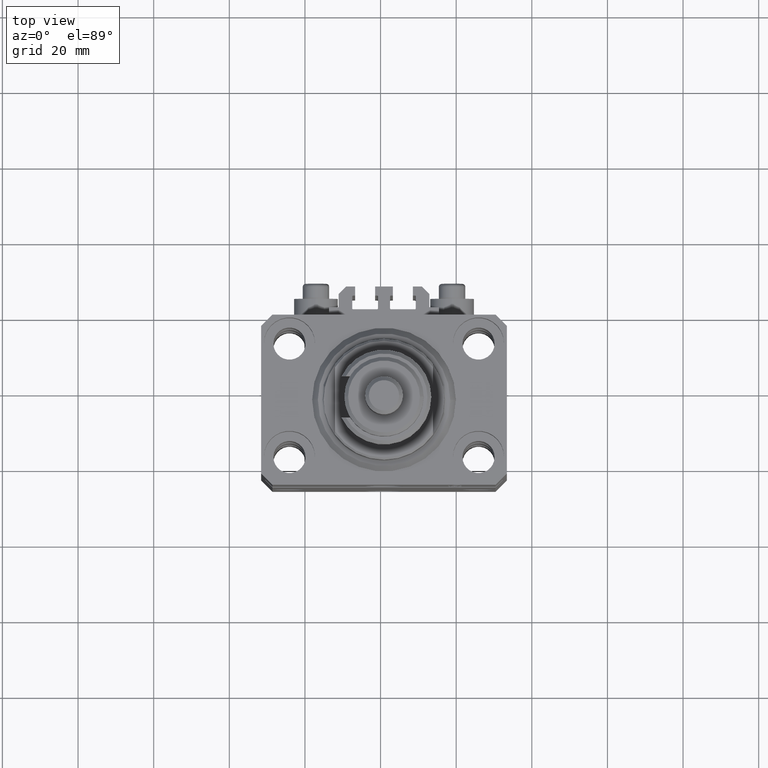
[diagram: clean part render]
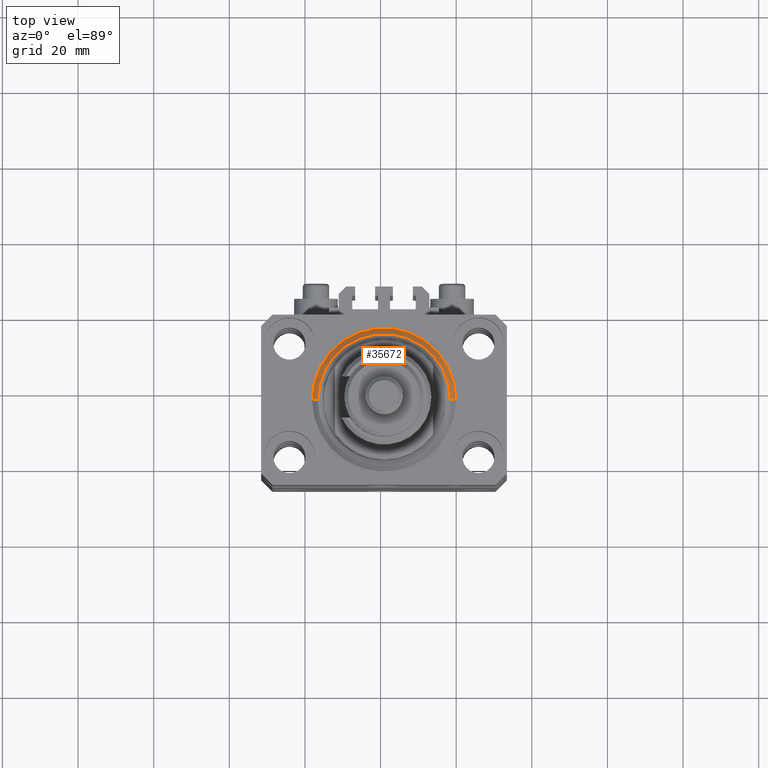
[diagram: same view with one face highlighted and labeled with its STEP entity id]
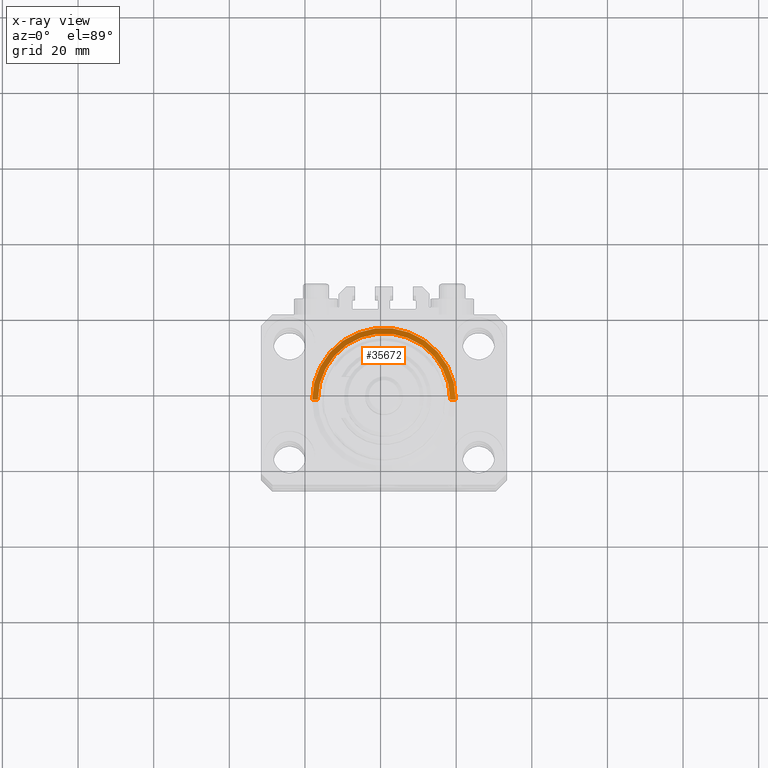
[diagram: x-ray of the same camera — body ghosted, the highlighted face saturated]
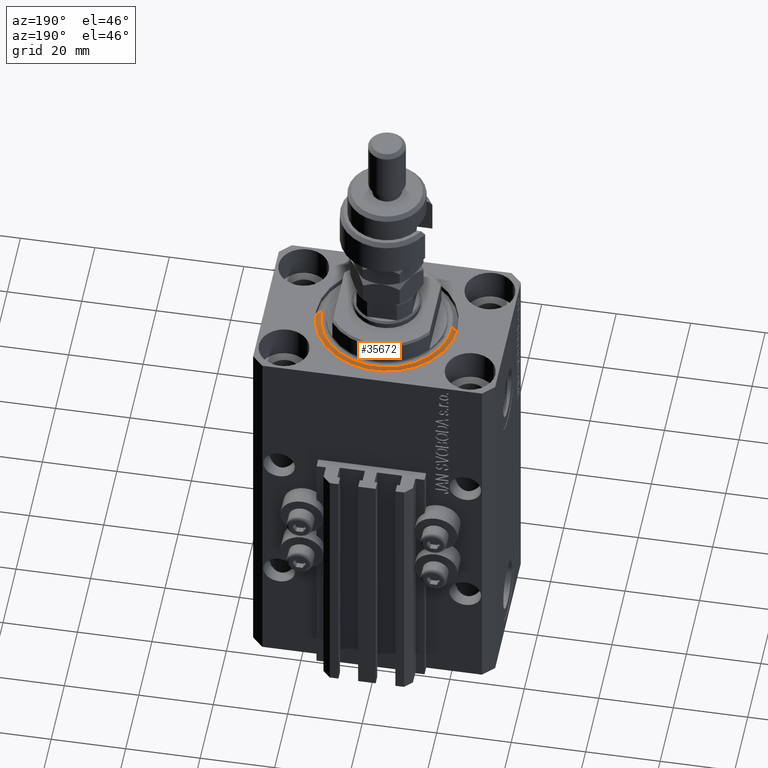
[diagram: same view with one face highlighted and labeled with its STEP entity id]
A machine part, top view. The second image highlights one B-rep face of the part: STEP entity #35672.
The next image is the same camera in x-ray: the body ghosted, the highlighted face saturated — about 0% of this face is hidden behind the body in this view.
A second angle (auxiliary view) of the same face is appended — the face is thin or edge-on in the first view.
In plain terms, the highlighted conical surface has half-angle 45 deg.
Its self-contained STEP definition (entity closure, byte-faithful):
#321 = DIRECTION ( 'NONE',  ( 0.7071067811865483499, 0.000000000000000000, 0.7071067811865467956 ) ) ;
#3217 = AXIS2_PLACEMENT_3D ( 'NONE', #46024, #38532, #27178 ) ;
#3499 = CARTESIAN_POINT ( 'NONE',  ( -17.49999999999999289, 2.234980408443919215E-15, 0.000000000000000000 ) ) ;
#4195 = LINE ( 'NONE', #42897, #15130 ) ;
#4554 = CARTESIAN_POINT ( 'NONE',  ( 17.49999999999999289, 0.000000000000000000, 0.000000000000000000 ) ) ;
#4700 = VERTEX_POINT ( 'NONE', #18122 ) ;
#6300 = VERTEX_POINT ( 'NONE', #3499 ) ;
#8472 = ORIENTED_EDGE ( 'NONE', *, *, #42648, .F. ) ;
#9015 = LINE ( 'NONE', #21131, #15438 ) ;
#9558 = DIRECTION ( 'NONE',  ( 1.000000000000000000, 0.000000000000000000, 0.000000000000000000 ) ) ;
#10967 = AXIS2_PLACEMENT_3D ( 'NONE', #37662, #45937, #9558 ) ;
#14463 = ORIENTED_EDGE ( 'NONE', *, *, #25511, .F. ) ;
#15130 = VECTOR ( 'NONE', #321, 1000.000000000000000 ) ;
#15438 = VECTOR ( 'NONE', #44126, 1000.000000000000000 ) ;
#16740 = CIRCLE ( 'NONE', #10967, 19.00000000000000000 ) ;
#17520 = VERTEX_POINT ( 'NONE', #17691 ) ;
#17691 = CARTESIAN_POINT ( 'NONE',  ( -19.00000000000000000, 0.000000000000000000, 1.500000000000004885 ) ) ;
#18122 = CARTESIAN_POINT ( 'NONE',  ( 19.00000000000000000, 2.326828918379970970E-15, 1.500000000000004885 ) ) ;
#21131 = CARTESIAN_POINT ( 'NONE',  ( -19.00000000000000000, 2.326828918379970970E-15, 1.500000000000004885 ) ) ;
#21509 = CIRCLE ( 'NONE', #38843, 17.49999999999999289 ) ;
#22617 = DIRECTION ( 'NONE',  ( 1.000000000000000000, 0.000000000000000000, 0.000000000000000000 ) ) ;
#23002 = CONICAL_SURFACE ( 'NONE', #3217, 19.00000000000000000, 0.7853981633974492782 ) ;
#24310 = EDGE_CURVE ( 'NONE', #4700, #17520, #16740, .T. ) ;
#25511 = EDGE_CURVE ( 'NONE', #49181, #4700, #4195, .T. ) ;
#27178 = DIRECTION ( 'NONE',  ( 1.000000000000000000, 0.000000000000000000, 0.000000000000000000 ) ) ;
#29830 = ORIENTED_EDGE ( 'NONE', *, *, #30916, .T. ) ;
#30607 = DIRECTION ( 'NONE',  ( -0.000000000000000000, -0.000000000000000000, -1.000000000000000000 ) ) ;
#30916 = EDGE_CURVE ( 'NONE', #6300, #17520, #9015, .T. ) ;
#32464 = EDGE_LOOP ( 'NONE', ( #8472, #29830, #45394, #14463 ) ) ;
#35672 = ADVANCED_FACE ( 'NONE', ( #42401 ), #23002, .T. ) ;
#37662 = CARTESIAN_POINT ( 'NONE',  ( 0.000000000000000000, 0.000000000000000000, 1.500000000000004885 ) ) ;
#38532 = DIRECTION ( 'NONE',  ( -0.000000000000000000, -0.000000000000000000, 1.000000000000000000 ) ) ;
#38843 = AXIS2_PLACEMENT_3D ( 'NONE', #45581, #30607, #22617 ) ;
#42401 = FACE_OUTER_BOUND ( 'NONE', #32464, .T. ) ;
#42648 = EDGE_CURVE ( 'NONE', #6300, #49181, #21509, .T. ) ;
#42897 = CARTESIAN_POINT ( 'NONE',  ( 19.00000000000000000, 0.000000000000000000, 1.500000000000004885 ) ) ;
#44126 = DIRECTION ( 'NONE',  ( -0.7071067811865483499, 8.659560562354943952E-17, 0.7071067811865467956 ) ) ;
#45394 = ORIENTED_EDGE ( 'NONE', *, *, #24310, .F. ) ;
#45581 = CARTESIAN_POINT ( 'NONE',  ( 0.000000000000000000, 0.000000000000000000, 0.000000000000000000 ) ) ;
#45937 = DIRECTION ( 'NONE',  ( -0.000000000000000000, -0.000000000000000000, 1.000000000000000000 ) ) ;
#46024 = CARTESIAN_POINT ( 'NONE',  ( 0.000000000000000000, 0.000000000000000000, 1.500000000000004885 ) ) ;
#49181 = VERTEX_POINT ( 'NONE', #4554 ) ;